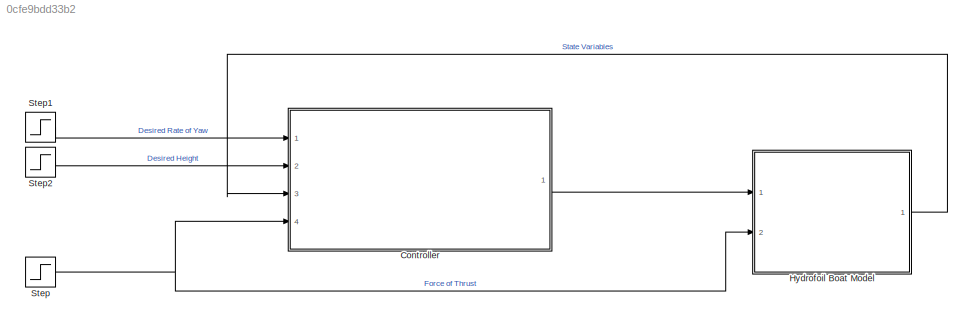
MODEL slx_0cfe9bdd33b2
KIND model
CONFIG AbsTol = auto
CONFIG EnableMultiTasking = off
CONFIG FixedStep = 0.05
CONFIG MaxStep = 0.1
CONFIG MinStep = auto
CONFIG RelTol = 1e-3
CONFIG SampleTimeConstraint = Unconstrained
CONFIG Solver = VariableStepAuto
CONFIG SolverName = VariableStepAuto
CONFIG StartTime = 0.0
CONFIG StopTime = 1
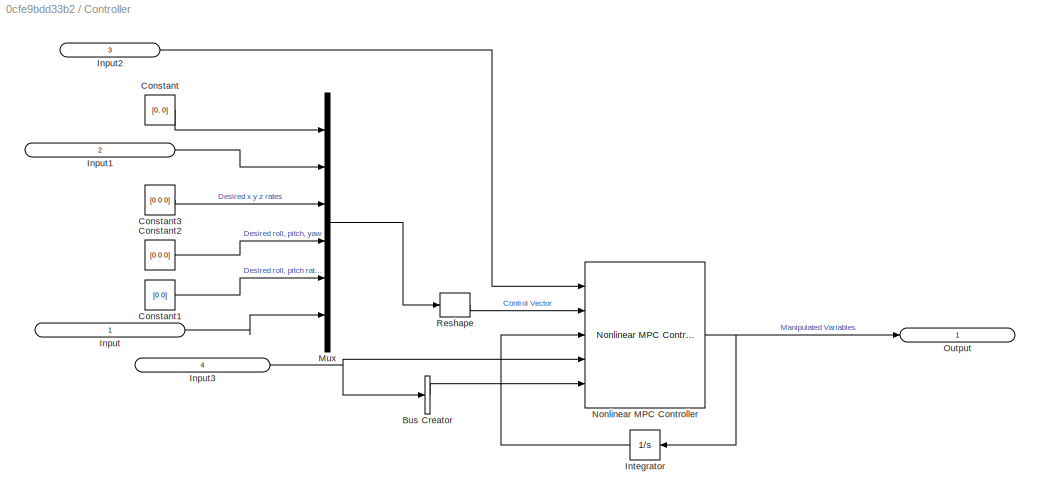
BLOCK [SubSystem] Controller
  Ports = [4, 1]
  RequestExecContextInheritance = off
BLOCK [BusCreator] Controller/Bus Creator
  DisplayOption = bar
  InheritFromInputs = off
  Inputs = 1
  NonVirtualBus = on
  OutDataTypeStr = Bus: myBusObject_41
  Ports = [1, 1]
BLOCK [Constant] Controller/Constant
  Value = [0, 0]
BLOCK [Constant] Controller/Constant1
  Value = [0 0]
BLOCK [Constant] Controller/Constant2
  Value = [0 0 0]
BLOCK [Constant] Controller/Constant3
  Value = [0 0 0]
BLOCK [Inport] Controller/Input
  IconDisplay = Signal name
BLOCK [Inport] Controller/Input1
  IconDisplay = Signal name
  Port = 2
BLOCK [Inport] Controller/Input2
  IconDisplay = Signal name
  Port = 3
BLOCK [Inport] Controller/Input3
  IconDisplay = Signal name
  Port = 4
BLOCK [Integrator] Controller/Integrator
  Ports = [1, 1]
BLOCK [Mux] Controller/Mux
  DisplayOption = bar
  Inputs = 6
  Ports = [6, 1]
BLOCK [Reference] Controller/Nonlinear MPC Controller  REF=mpclib/Nonlinear MPC Controller  (lib defined in mdl_ae329e0e0455)
  Ports = [5, 1]
  SCDEnableBlockLinearizationSpecification = on
  SourceBlock = mpclib/Nonlinear MPC Controller
  SourceProductBaseCode = MP
  SourceProductName = Model Predictive Control Toolbox
  SourceType = NonlinearMPC
BLOCK [Outport] Controller/Output
  IconDisplay = Signal name
BLOCK [Reshape] Controller/Reshape
  OutputDimensionality = Row vector (2-D)
  Ports = [1, 1]
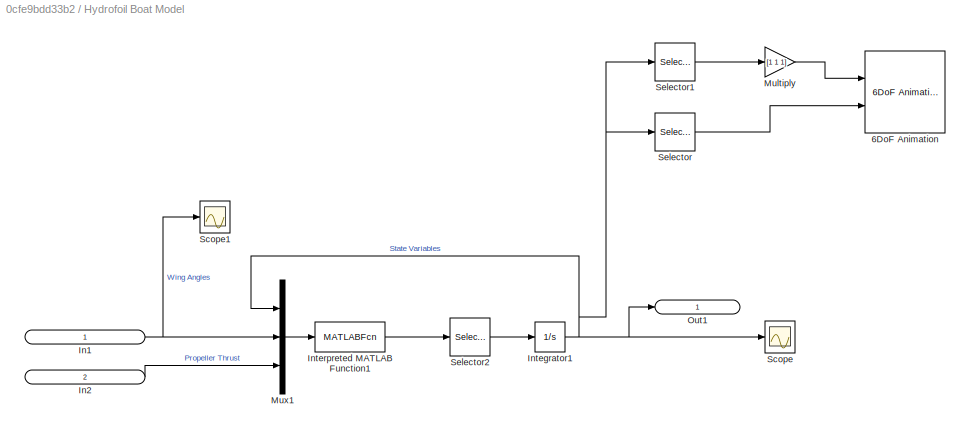
BLOCK [SubSystem] Hydrofoil Boat Model
  Ports = [2, 1]
  RequestExecContextInheritance = off
BLOCK [Reference] Hydrofoil Boat Model/6DoF Animation  REF=aerolibanim/6DoF Animation
  Ports = [2]
  SourceBlock = aerolibanim/6DoF Animation
  SourceProductBaseCode = AE
  SourceProductName = Aerospace Blockset
  SourceType = 6DoF_Animation
BLOCK [Inport] Hydrofoil Boat Model/In1
  IconDisplay = Signal name
BLOCK [Inport] Hydrofoil Boat Model/In2
  IconDisplay = Signal name
  Port = 2
BLOCK [Integrator] Hydrofoil Boat Model/Integrator1
  InitialCondition = x0
  Ports = [1, 1]
BLOCK [MATLABFcn] Hydrofoil Boat Model/Interpreted MATLAB Function1
  MATLABFcn = scalemodelstatefunction(u(1:12),u(13:16),u(17))
  OutputDimensions = 12
  Ports = [1, 1]
BLOCK [Gain] Hydrofoil Boat Model/Multiply
  Gain = [1 1 1]
  OutDataTypeStr = Inherit: Inherit via internal rule
  ParamDataTypeStr = Inherit: Inherit via internal rule
  SaturateOnIntegerOverflow = off
BLOCK [Mux] Hydrofoil Boat Model/Mux1
  DisplayOption = bar
  Inputs = 3
  Ports = [3, 1]
BLOCK [Outport] Hydrofoil Boat Model/Out1
  IconDisplay = Signal name
BLOCK [Scope] Hydrofoil Boat Model/Scope
  Floating = off
  NumInputPorts = 1
  Ports = [1]
  ScopeSpecificationString = Simulink.scopes.TimeScopeBlockCfg('CurrentConfiguration', extmgr.ConfigurationSet(extmgr.Configuration('Core','General UI',true),extmgr.Configuration('Core','Source UI',true),extmgr.Configuration('Sources','WiredSimulink',true,'DataLoggingVariableName','ScopeData2'),extmgr.Configuration('Visuals','Time Domain',true,'SerializedDisplays',{struct('MinYLimReal','-1.5787','MaxYLimReal','0.60666','YLabe...<+2041ch>
BLOCK [Scope] Hydrofoil Boat Model/Scope1
  Floating = off
  NumInputPorts = 1
  Ports = [1]
  ScopeSpecificationString = Simulink.scopes.TimeScopeBlockCfg('CurrentConfiguration', extmgr.ConfigurationSet(extmgr.Configuration('Core','General UI',true),extmgr.Configuration('Core','Source UI',true),extmgr.Configuration('Sources','WiredSimulink',true,'DataLoggingVariableName','ScopeData1'),extmgr.Configuration('Visuals','Time Domain',true,'SerializedDisplays',{struct('MinYLimReal','-25.0254','MaxYLimReal','25.01762','YLa...<+1932ch>
BLOCK [Selector] Hydrofoil Boat Model/Selector
  IndexOptions = Index vector (dialog)
  Indices = [8 7 9]
  InputPortWidth = 12
  OutputSizes = 1
  Ports = [1, 1]
BLOCK [Selector] Hydrofoil Boat Model/Selector1
  IndexOptions = Index vector (dialog)
  Indices = [1 2 3]
  InputPortWidth = 12
  OutputSizes = 1
  Ports = [1, 1]
BLOCK [Selector] Hydrofoil Boat Model/Selector2
  IndexOptions = Index vector (dialog)
  Indices = [1 2 3 4 5 6 7 8 9 10 11 12]
  InputPortWidth = 12
  OutputSizes = 1
  Ports = [1, 1]
BLOCK [Step] Step
  After = 35
  SampleTime = 0
  Time = 0
BLOCK [Step] Step1
  After = 0
  SampleTime = 0
  Time = 0
BLOCK [Step] Step2
  After = 2
  SampleTime = 0
  Time = 0
LINE Controller/Bus Creator:1 -> Controller/Nonlinear MPC Controller:5
LINE Controller/Constant1:1 -> Controller/Mux:5
LINE Controller/Constant2:1 -> Controller/Mux:4
LINE Controller/Constant3:1 -> Controller/Mux:3
LINE Controller/Constant:1 -> Controller/Mux:1
LINE Controller/Input1:1 -> Controller/Mux:2
LINE Controller/Input2:1 -> Controller/Nonlinear MPC Controller:1
NET Controller/Input3:1 -> Controller/Bus Creator:1, Controller/Nonlinear MPC Controller:4
LINE Controller/Input:1 -> Controller/Mux:6
LINE Controller/Integrator:1 -> Controller/Nonlinear MPC Controller:3
LINE Controller/Mux:1 -> Controller/Reshape:1
NET Controller/Nonlinear MPC Controller:1 -> Controller/Integrator:1, Controller/Output:1
LINE Controller/Reshape:1 -> Controller/Nonlinear MPC Controller:2
LINE Controller:1 -> Hydrofoil Boat Model:1
NET Hydrofoil Boat Model/In1:1 -> Hydrofoil Boat Model/Mux1:2, Hydrofoil Boat Model/Scope1:1
LINE Hydrofoil Boat Model/In2:1 -> Hydrofoil Boat Model/Mux1:3
NET Hydrofoil Boat Model/Integrator1:1 -> Hydrofoil Boat Model/Mux1:1, Hydrofoil Boat Model/Out1:1, Hydrofoil Boat Model/Scope:1, Hydrofoil Boat Model/Selector1:1, Hydrofoil Boat Model/Selector:1
LINE Hydrofoil Boat Model/Interpreted MATLAB Function1:1 -> Hydrofoil Boat Model/Selector2:1
LINE Hydrofoil Boat Model/Multiply:1 -> Hydrofoil Boat Model/6DoF Animation:1
LINE Hydrofoil Boat Model/Mux1:1 -> Hydrofoil Boat Model/Interpreted MATLAB Function1:1
LINE Hydrofoil Boat Model/Selector1:1 -> Hydrofoil Boat Model/Multiply:1
LINE Hydrofoil Boat Model/Selector2:1 -> Hydrofoil Boat Model/Integrator1:1
LINE Hydrofoil Boat Model/Selector:1 -> Hydrofoil Boat Model/6DoF Animation:2
LINE Hydrofoil Boat Model:1 -> Controller:3
LINE Step1:1 -> Controller:1
LINE Step2:1 -> Controller:2
NET Step:1 -> Controller:4, Hydrofoil Boat Model:2
note: NET lines group one-source signal fan-out (src -> all destinations, sorted); 1:1 wires keep LINE
